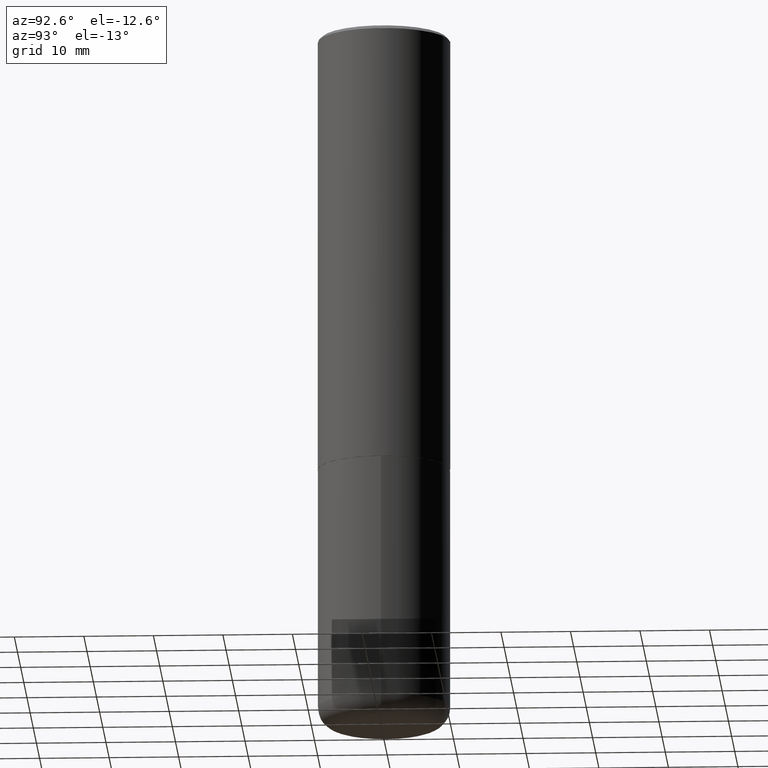
[diagram: clean part render]
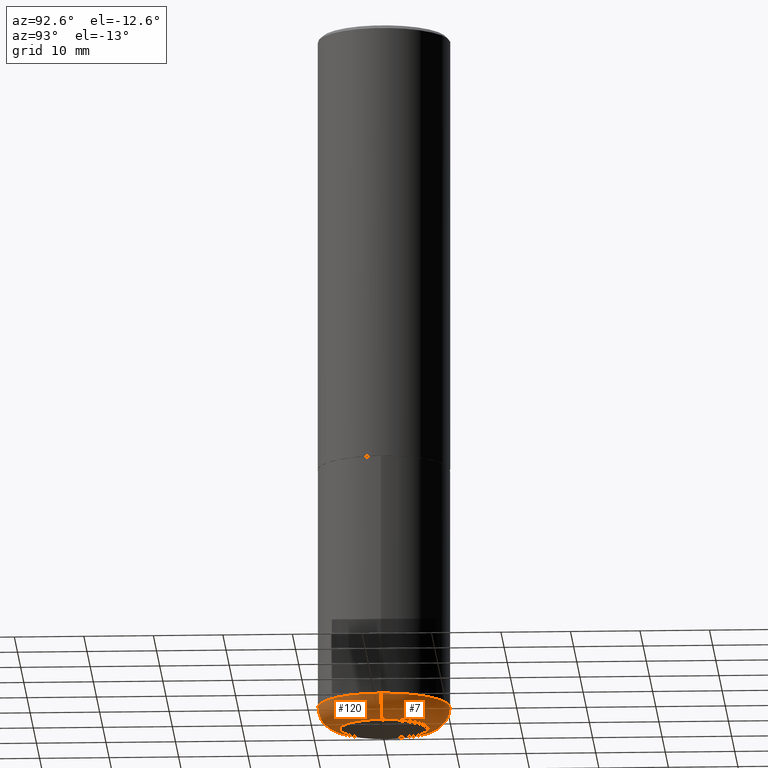
[diagram: same view with one multi-face feature highlighted, each face labeled with its STEP entity id]
A machine part, auxiliary view. The highlighted faces form ONE feature: a constant-radius fillet chain: 2 tangent blend faces with common blend radius 3.175 mm. The faces share edges in the B-rep.
Their STEP definitions:
[1] entity #7 (Torus):
#2 = CARTESIAN_POINT ( 'NONE',  ( -0.2500000000000000555, -1.175313334861693862E-14, -3.875000000000000000 ) ) ;
#4 = CIRCLE ( 'NONE', #260, 0.1249999999999999306 ) ;
#6 = CARTESIAN_POINT ( 'NONE',  ( 0.3749999999999999445, -1.614810119214953752E-14, -3.875000000000000000 ) ) ;
#7 = ADVANCED_FACE ( 'NONE', ( #17 ), #244, .T. ) ;
#9 = DIRECTION ( 'NONE',  ( -2.445468806185136597E-29, 3.491481338843145583E-15, 1.000000000000000000 ) ) ;
#10 = ORIENTED_EDGE ( 'NONE', *, *, #323, .F. ) ;
#17 = FACE_OUTER_BOUND ( 'NONE', #106, .T. ) ;
#35 = CARTESIAN_POINT ( 'NONE',  ( -0.2500000000000000555, -1.152726172244457105E-14, -4.000000000000000000 ) ) ;
#36 = DIRECTION ( 'NONE',  ( 1.000000000000000000, -6.982962677686263555E-15, 0.000000000000000000 ) ) ;
#65 = DIRECTION ( 'NONE',  ( -1.000000000000000000, 7.105427357601000281E-15, 0.000000000000000000 ) ) ;
#106 = EDGE_LOOP ( 'NONE', ( #191, #410, #112, #10 ) ) ;
#112 = ORIENTED_EDGE ( 'NONE', *, *, #166, .F. ) ;
#127 = AXIS2_PLACEMENT_3D ( 'NONE', #240, #9, #141 ) ;
#141 = DIRECTION ( 'NONE',  ( 1.000000000000000000, -6.982962677686269077E-15, 0.000000000000000000 ) ) ;
#166 = EDGE_CURVE ( 'NONE', #238, #229, #371, .T. ) ;
#167 = DIRECTION ( 'NONE',  ( 7.105427357601001859E-15, 1.000000000000000000, -3.491481338843145583E-15 ) ) ;
#169 = VERTEX_POINT ( 'NONE', #35 ) ;
#178 = CARTESIAN_POINT ( 'NONE',  ( 9.476191623967404313E-29, -1.352949018801718908E-14, -3.875000000000000000 ) ) ;
#183 = AXIS2_PLACEMENT_3D ( 'NONE', #226, #363, #36 ) ;
#191 = ORIENTED_EDGE ( 'NONE', *, *, #262, .T. ) ;
#204 = CIRCLE ( 'NONE', #313, 0.1249999999999999306 ) ;
#209 = CARTESIAN_POINT ( 'NONE',  ( -0.3749999999999999445, -1.086495492891681496E-14, -3.875000000000000000 ) ) ;
#226 = CARTESIAN_POINT ( 'NONE',  ( 9.476191623967404313E-29, -1.352949018801718908E-14, -3.875000000000000000 ) ) ;
#229 = VERTEX_POINT ( 'NONE', #209 ) ;
#238 = VERTEX_POINT ( 'NONE', #6 ) ;
#240 = CARTESIAN_POINT ( 'NONE',  ( 9.781875224740546387E-29, -1.396592535537258233E-14, -4.000000000000000000 ) ) ;
#244 = TOROIDAL_SURFACE ( 'NONE', #416, 0.2500000000000000555, 0.1249999999999999167 ) ;
#245 = DIRECTION ( 'NONE',  ( -2.445468806185136597E-29, 3.491481338843145583E-15, 1.000000000000000000 ) ) ;
#260 = AXIS2_PLACEMENT_3D ( 'NONE', #392, #289, #281 ) ;
#262 = EDGE_CURVE ( 'NONE', #402, #169, #317, .T. ) ;
#266 = CARTESIAN_POINT ( 'NONE',  ( 0.2500000000000000555, -1.571166602479415059E-14, -4.000000000000000000 ) ) ;
#281 = DIRECTION ( 'NONE',  ( 1.000000000000000000, -6.982962677686266711E-15, 0.000000000000000000 ) ) ;
#289 = DIRECTION ( 'NONE',  ( -6.982962677686266711E-15, -1.000000000000000000, 3.491481338843145583E-15 ) ) ;
#313 = AXIS2_PLACEMENT_3D ( 'NONE', #2, #167, #65 ) ;
#317 = CIRCLE ( 'NONE', #127, 0.2500000000000000555 ) ;
#323 = EDGE_CURVE ( 'NONE', #402, #238, #4, .T. ) ;
#363 = DIRECTION ( 'NONE',  ( -2.445468806185136597E-29, 3.491481338843145583E-15, 1.000000000000000000 ) ) ;
#371 = CIRCLE ( 'NONE', #183, 0.3749999999999999445 ) ;
#381 = DIRECTION ( 'NONE',  ( 1.000000000000000000, -6.982962677686263555E-15, 4.883557194083111219E-29 ) ) ;
#384 = EDGE_CURVE ( 'NONE', #169, #229, #204, .T. ) ;
#392 = CARTESIAN_POINT ( 'NONE',  ( 0.2500000000000000555, -1.527523085743875734E-14, -3.875000000000000000 ) ) ;
#402 = VERTEX_POINT ( 'NONE', #266 ) ;
#410 = ORIENTED_EDGE ( 'NONE', *, *, #384, .T. ) ;
#416 = AXIS2_PLACEMENT_3D ( 'NONE', #178, #245, #381 ) ;
[2] entity #120 (Torus):
#2 = CARTESIAN_POINT ( 'NONE',  ( -0.2500000000000000555, -1.175313334861693862E-14, -3.875000000000000000 ) ) ;
#4 = CIRCLE ( 'NONE', #260, 0.1249999999999999306 ) ;
#6 = CARTESIAN_POINT ( 'NONE',  ( 0.3749999999999999445, -1.614810119214953752E-14, -3.875000000000000000 ) ) ;
#35 = CARTESIAN_POINT ( 'NONE',  ( -0.2500000000000000555, -1.152726172244457105E-14, -4.000000000000000000 ) ) ;
#46 = CARTESIAN_POINT ( 'NONE',  ( 9.781875224740546387E-29, -1.396592535537258233E-14, -4.000000000000000000 ) ) ;
#59 = FACE_OUTER_BOUND ( 'NONE', #235, .T. ) ;
#65 = DIRECTION ( 'NONE',  ( -1.000000000000000000, 7.105427357601000281E-15, 0.000000000000000000 ) ) ;
#111 = DIRECTION ( 'NONE',  ( -2.445468806185136597E-29, 3.491481338843145583E-15, 1.000000000000000000 ) ) ;
#120 = ADVANCED_FACE ( 'NONE', ( #59 ), #273, .T. ) ;
#121 = AXIS2_PLACEMENT_3D ( 'NONE', #156, #357, #324 ) ;
#144 = ORIENTED_EDGE ( 'NONE', *, *, #323, .T. ) ;
#146 = ORIENTED_EDGE ( 'NONE', *, *, #267, .F. ) ;
#154 = ORIENTED_EDGE ( 'NONE', *, *, #384, .F. ) ;
#156 = CARTESIAN_POINT ( 'NONE',  ( 9.476191623967404313E-29, -1.352949018801718908E-14, -3.875000000000000000 ) ) ;
#167 = DIRECTION ( 'NONE',  ( 7.105427357601001859E-15, 1.000000000000000000, -3.491481338843145583E-15 ) ) ;
#169 = VERTEX_POINT ( 'NONE', #35 ) ;
#204 = CIRCLE ( 'NONE', #313, 0.1249999999999999306 ) ;
#206 = DIRECTION ( 'NONE',  ( 1.000000000000000000, -6.982962677686263555E-15, 0.000000000000000000 ) ) ;
#209 = CARTESIAN_POINT ( 'NONE',  ( -0.3749999999999999445, -1.086495492891681496E-14, -3.875000000000000000 ) ) ;
#229 = VERTEX_POINT ( 'NONE', #209 ) ;
#235 = EDGE_LOOP ( 'NONE', ( #154, #412, #144, #146 ) ) ;
#238 = VERTEX_POINT ( 'NONE', #6 ) ;
#250 = AXIS2_PLACEMENT_3D ( 'NONE', #46, #111, #270 ) ;
#256 = EDGE_CURVE ( 'NONE', #169, #402, #259, .T. ) ;
#259 = CIRCLE ( 'NONE', #250, 0.2500000000000000555 ) ;
#260 = AXIS2_PLACEMENT_3D ( 'NONE', #392, #289, #281 ) ;
#266 = CARTESIAN_POINT ( 'NONE',  ( 0.2500000000000000555, -1.571166602479415059E-14, -4.000000000000000000 ) ) ;
#267 = EDGE_CURVE ( 'NONE', #229, #238, #405, .T. ) ;
#270 = DIRECTION ( 'NONE',  ( 1.000000000000000000, -6.982962677686269077E-15, 0.000000000000000000 ) ) ;
#273 = TOROIDAL_SURFACE ( 'NONE', #121, 0.2500000000000000555, 0.1249999999999999167 ) ;
#281 = DIRECTION ( 'NONE',  ( 1.000000000000000000, -6.982962677686266711E-15, 0.000000000000000000 ) ) ;
#289 = DIRECTION ( 'NONE',  ( -6.982962677686266711E-15, -1.000000000000000000, 3.491481338843145583E-15 ) ) ;
#313 = AXIS2_PLACEMENT_3D ( 'NONE', #2, #167, #65 ) ;
#323 = EDGE_CURVE ( 'NONE', #402, #238, #4, .T. ) ;
#324 = DIRECTION ( 'NONE',  ( 1.000000000000000000, -6.982962677686263555E-15, 4.883557194083111219E-29 ) ) ;
#338 = CARTESIAN_POINT ( 'NONE',  ( 9.476191623967404313E-29, -1.352949018801718908E-14, -3.875000000000000000 ) ) ;
#357 = DIRECTION ( 'NONE',  ( -2.445468806185136597E-29, 3.491481338843145583E-15, 1.000000000000000000 ) ) ;
#366 = AXIS2_PLACEMENT_3D ( 'NONE', #338, #373, #206 ) ;
#373 = DIRECTION ( 'NONE',  ( -2.445468806185136597E-29, 3.491481338843145583E-15, 1.000000000000000000 ) ) ;
#384 = EDGE_CURVE ( 'NONE', #169, #229, #204, .T. ) ;
#392 = CARTESIAN_POINT ( 'NONE',  ( 0.2500000000000000555, -1.527523085743875734E-14, -3.875000000000000000 ) ) ;
#402 = VERTEX_POINT ( 'NONE', #266 ) ;
#405 = CIRCLE ( 'NONE', #366, 0.3749999999999999445 ) ;
#412 = ORIENTED_EDGE ( 'NONE', *, *, #256, .T. ) ;